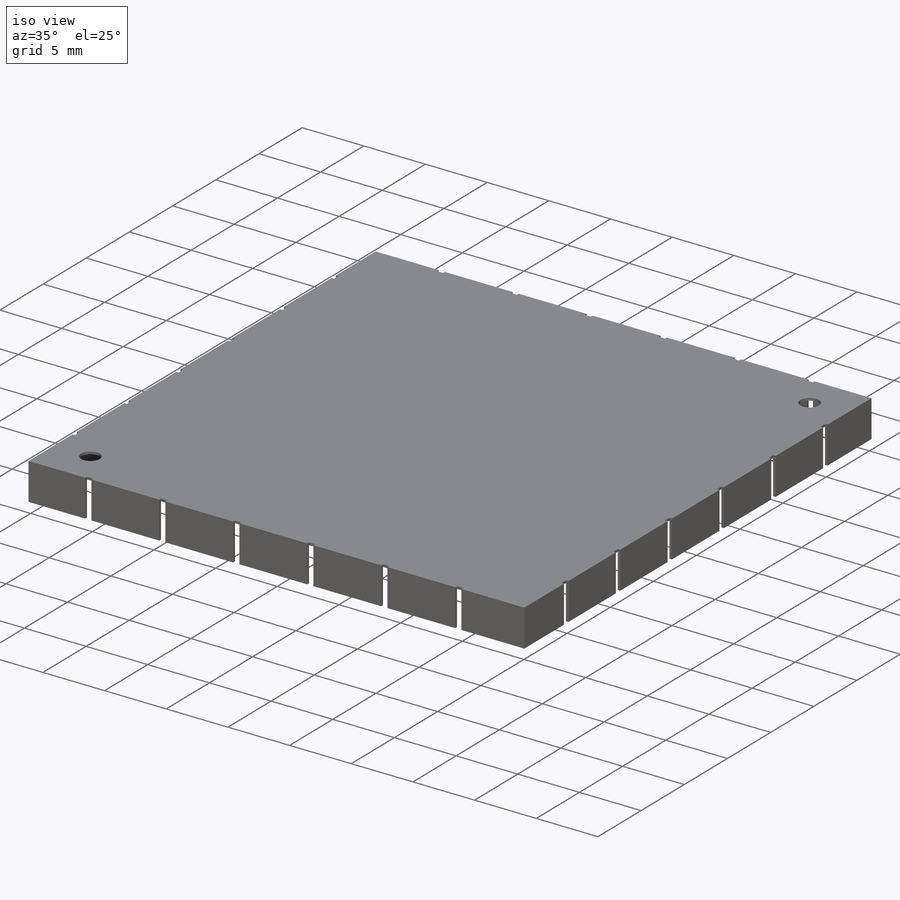
[diagram: iso view]
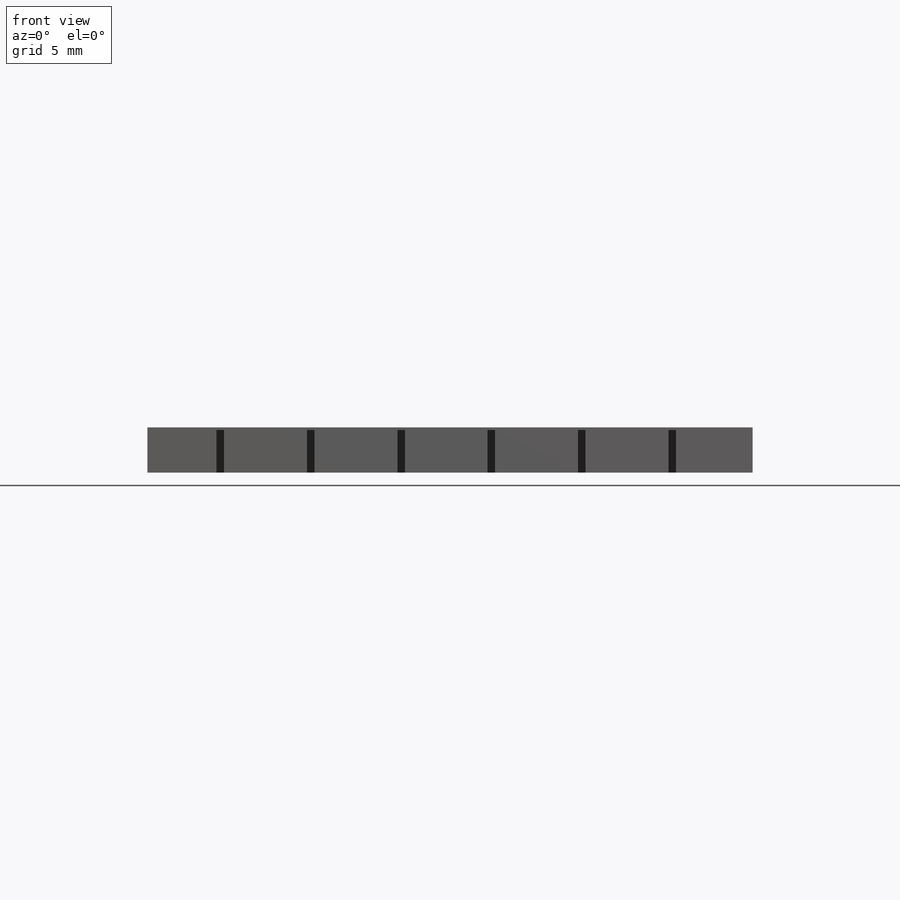
[diagram: front view]
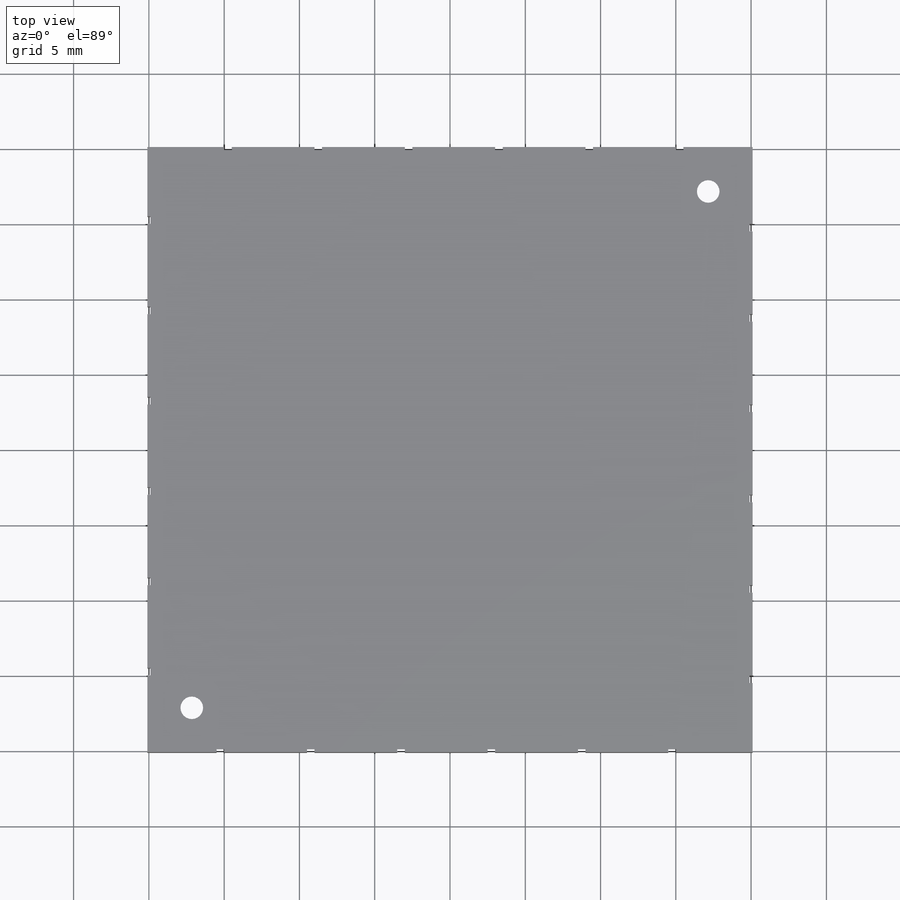
[diagram: top view]
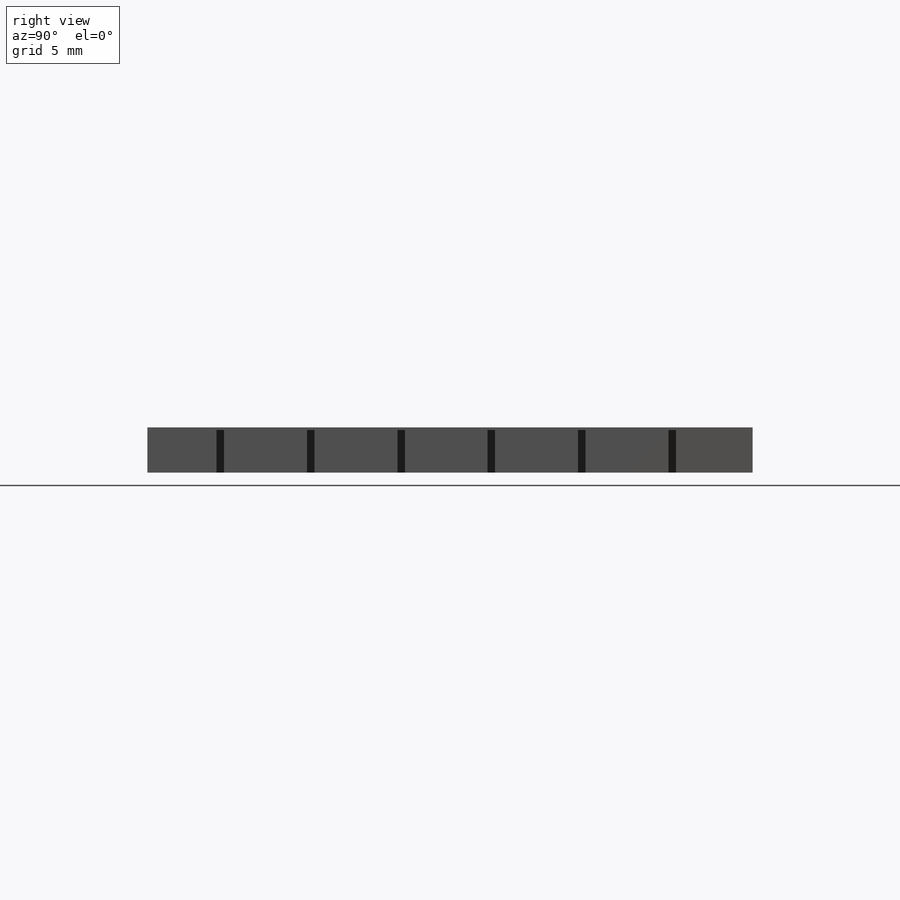
[diagram: right view]
SOLIDWORKS PART (.sldprt)
format: sldprt  version: not decoded by parser v0  size: 442,368 bytes
history: native  units: mm
features: sketch x3, cut_extrude x2, material x1, extrude x1, shell x1, pattern_linear x1, pattern_circular x1 (+11 scaffold rows collapsed)
feature tree (21):
  scaffold x11  (default folders/planes/origin — collapsed)
  material  "Magnesium Alloy"
  sketch  "Sketch1"  dims[D1=40.2mm]
  extrude  "Boss-Extrude1"  Depth=3mm
  shell  "Shell1"  Thickness=0.2mm
  sketch  "Sketch2"  dims[D1=1.5mm D2=2.75mm D3=2.75mm]
  cut_extrude  "Holes"  [1 undecoded]
  sketch  "Sketch3"  dims[D1=0.5mm D2=14.5mm]
  cut_extrude  "Finger Slot"  Depth=0.2mm
  pattern_linear  "LPattern3"  Count1=6 Count2=1 Spacing1=6mm Spacing2=6mm
  pattern_circular  "CirPattern1"  Count=4 Angle=90deg
decode coverage: 8 of 9 modeling features carry decoded parameters
note: 1 parameter value undecoded
note: suppression state not decoded; provenance and decode notes live in map.json
